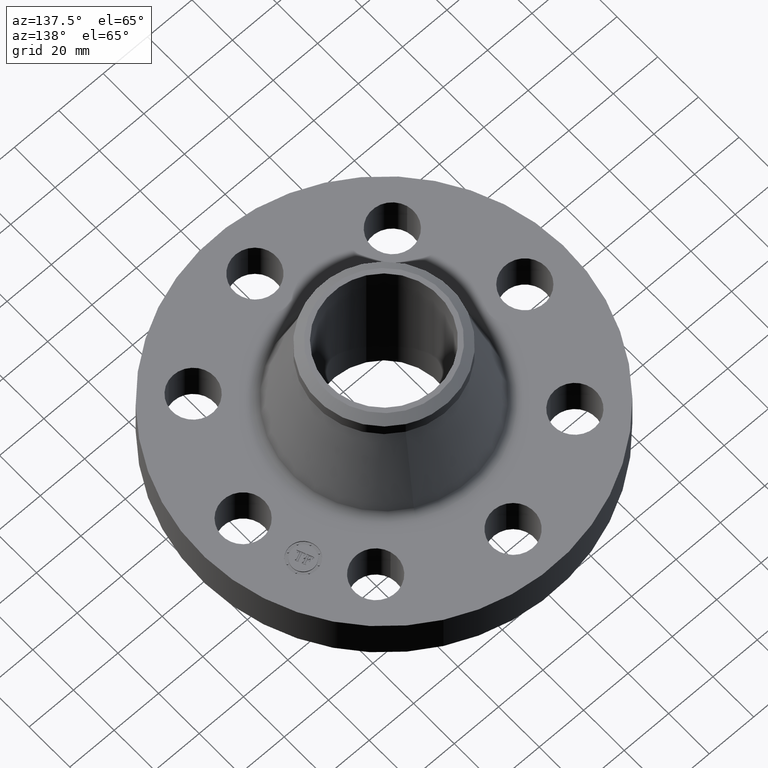
[diagram: clean part render]
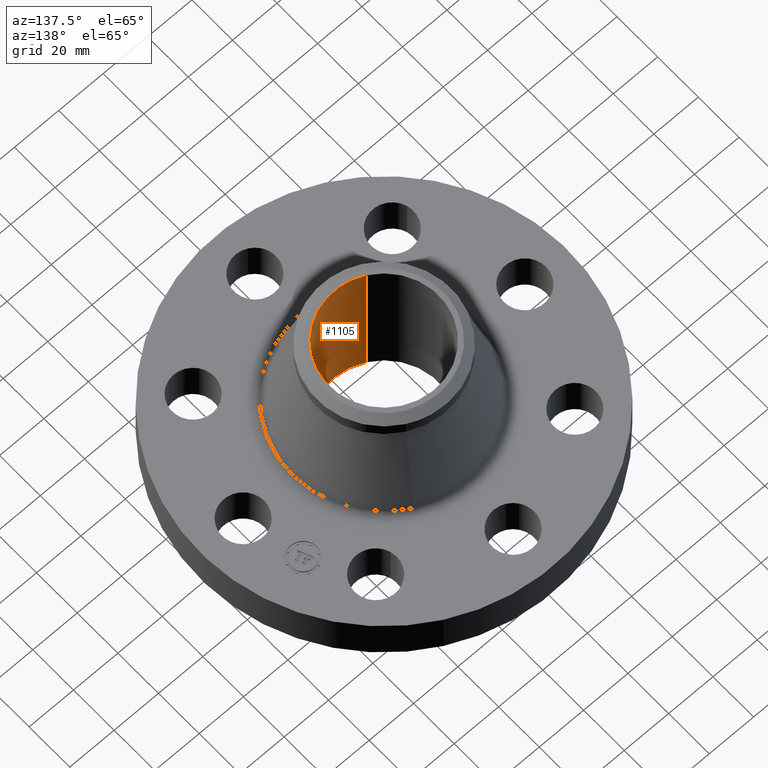
[diagram: same view with one face highlighted and labeled with its STEP entity id]
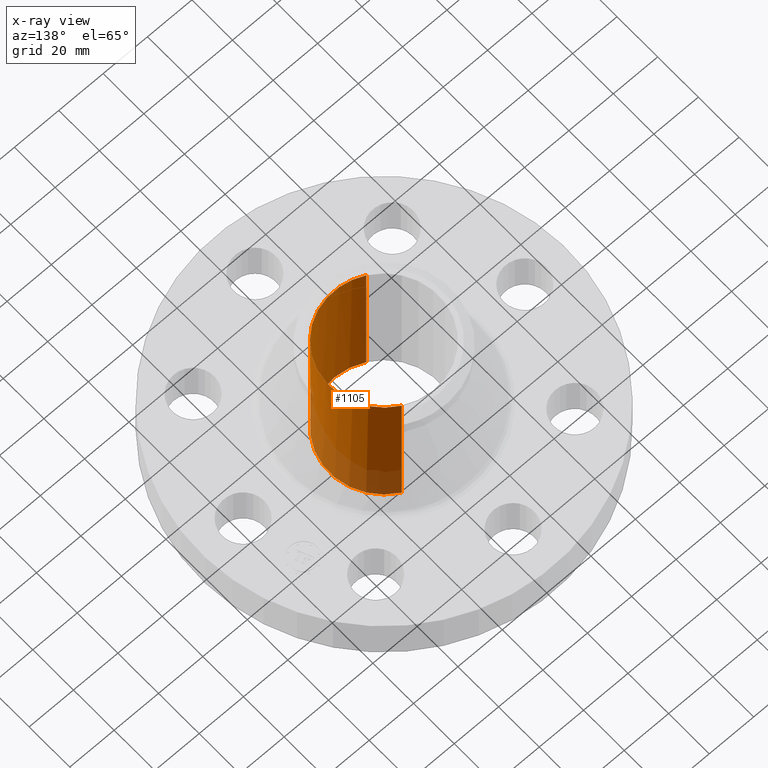
[diagram: x-ray of the same camera — body ghosted, the highlighted face saturated]
A machine part, auxiliary view. The second image highlights one B-rep face of the part: STEP entity #1105.
The next image is the same camera in x-ray: the body ghosted, the highlighted face saturated — about 21% of this face is hidden behind the body in this view.
In plain terms, the highlighted cylindrical surface (partial cylindrical patch) has radius 24.6253 mm, axis along (0, 0, -1).
Its self-contained STEP definition (entity closure, byte-faithful):
#566=AXIS2_PLACEMENT_3D('Circle Axis2P3D',#564,#565,$) ;
#1066=AXIS2_PLACEMENT_3D('Cylinder Axis2P3D',#1063,#1064,#1065) ;
#564=CARTESIAN_POINT('Axis2P3D Location',(0.,2.40639004786E-011,0.)) ;
#568=CARTESIAN_POINT('Vertex',(0.464803059679,0.850816293756,-1.52268748791E-011)) ;
#570=CARTESIAN_POINT('Vertex',(-0.464803059679,-0.850816293756,-1.52268748791E-011)) ;
#1063=CARTESIAN_POINT('Axis2P3D Location',(0.,0.,1.34500000001)) ;
#1069=CARTESIAN_POINT('Control Point',(0.464803059679,0.850816293756,2.69000000004)) ;
#1070=CARTESIAN_POINT('Control Point',(0.59844897058,0.777805199873,2.69000000003)) ;
#1071=CARTESIAN_POINT('Control Point',(0.71775918672,0.678552792749,2.69000000003)) ;
#1072=CARTESIAN_POINT('Control Point',(0.815840508176,0.556791170806,2.69000000003)) ;
#1073=CARTESIAN_POINT('Control Point',(0.958975643793,0.281371119006,2.69000000003)) ;
#1074=CARTESIAN_POINT('Control Point',(0.987341669335,-0.0277231070429,2.69000000003)) ;
#1075=CARTESIAN_POINT('Control Point',(0.97059716828,-0.183175543116,2.69000000003)) ;
#1076=CARTESIAN_POINT('Control Point',(0.877057606998,-0.47913875444,2.69000000002)) ;
#1077=CARTESIAN_POINT('Control Point',(0.678552792749,-0.71775918672,2.69000000002)) ;
#1078=CARTESIAN_POINT('Control Point',(0.556791170806,-0.815840508176,2.69000000002)) ;
#1079=CARTESIAN_POINT('Control Point',(0.281371119006,-0.958975643793,2.69000000002)) ;
#1080=CARTESIAN_POINT('Control Point',(-0.0277231070429,-0.987341669335,2.69000000001)) ;
#1081=CARTESIAN_POINT('Control Point',(-0.183175543116,-0.97059716828,2.69000000001)) ;
#1082=CARTESIAN_POINT('Control Point',(-0.331157148778,-0.923827387639,2.69000000001)) ;
#1083=CARTESIAN_POINT('Control Point',(-0.464803059679,-0.850816293756,2.69000000001)) ;
#1084=CARTESIAN_POINT('Vertex',(0.464803059679,0.850816293756,2.69000000004)) ;
#1086=CARTESIAN_POINT('Vertex',(-0.464803059679,-0.850816293756,2.69000000004)) ;
#1089=CARTESIAN_POINT('Line Origine',(0.464803059679,0.850816293756,1.34500000001)) ;
#1094=CARTESIAN_POINT('Line Origine',(-0.464803059679,-0.850816293756,1.34500000001)) ;
#565=DIRECTION('Axis2P3D Direction',(0.,0.,-0.0393700787402)) ;
#1064=DIRECTION('Axis2P3D Direction',(0.,0.,-0.0393700787402)) ;
#1065=DIRECTION('Axis2P3D XDirection',(0.0188750212049,0.0345504945626,0.)) ;
#1090=DIRECTION('Vector Direction',(0.,0.,-0.0393700787402)) ;
#1095=DIRECTION('Vector Direction',(0.,0.,-0.0393700787402)) ;
#1091=VECTOR('Line Direction',#1090,0.0393700787402) ;
#1096=VECTOR('Line Direction',#1095,0.0393700787402) ;
#1100=ORIENTED_EDGE('',*,*,#1088,.F.) ;
#1101=ORIENTED_EDGE('',*,*,#1093,.T.) ;
#1102=ORIENTED_EDGE('',*,*,#572,.T.) ;
#1103=ORIENTED_EDGE('',*,*,#1098,.F.) ;
#1105=ADVANCED_FACE('PartBody',(#1104),#1067,.F.) ;
#1068=B_SPLINE_CURVE_WITH_KNOTS('',5,(#1069,#1070,#1071,#1072,#1073,#1074,#1075,#1076,#1077,#1078,#1079,#1080,#1081,#1082,#1083),.UNSPECIFIED.,.F.,.U.,(6,3,3,3,6),(-38.6813307864,-19.3406653932,0.,19.3406653932,38.6813307864),.UNSPECIFIED.) ;
#567=CIRCLE('generated circle',#566,0.969500000001) ;
#1067=CYLINDRICAL_SURFACE('generated cylinder',#1066,0.969500000004) ;
#572=EDGE_CURVE('',#569,#571,#567,.T.) ;
#1088=EDGE_CURVE('',#1085,#1087,#1068,.T.) ;
#1093=EDGE_CURVE('',#1085,#569,#1092,.T.) ;
#1098=EDGE_CURVE('',#1087,#571,#1097,.T.) ;
#1099=EDGE_LOOP('',(#1100,#1101,#1102,#1103)) ;
#1104=FACE_OUTER_BOUND('',#1099,.T.) ;
#1092=LINE('Line',#1089,#1091) ;
#1097=LINE('Line',#1094,#1096) ;
#569=VERTEX_POINT('',#568) ;
#571=VERTEX_POINT('',#570) ;
#1085=VERTEX_POINT('',#1084) ;
#1087=VERTEX_POINT('',#1086) ;